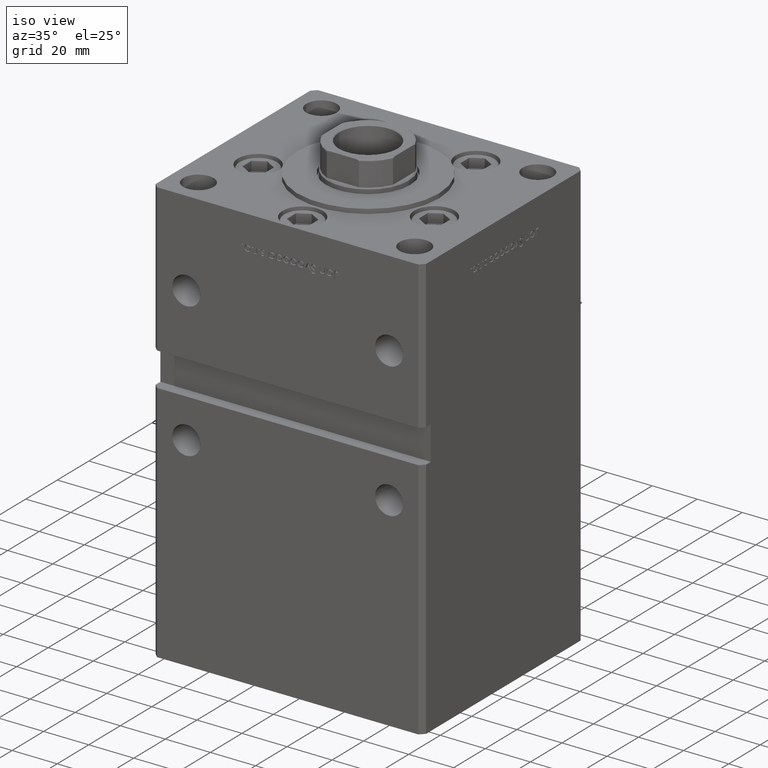
[diagram: clean part render]
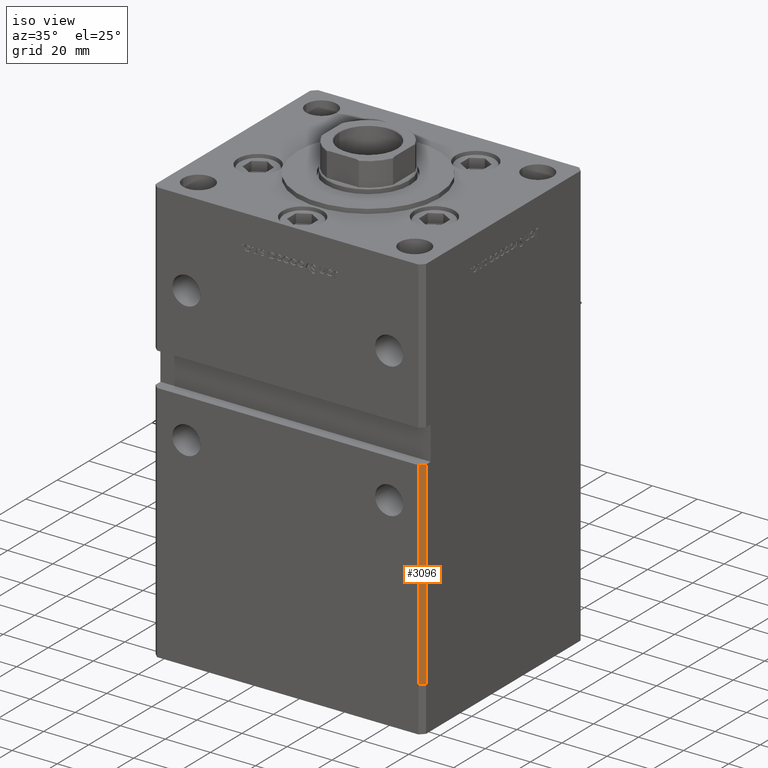
[diagram: same view with one face highlighted and labeled with its STEP entity id]
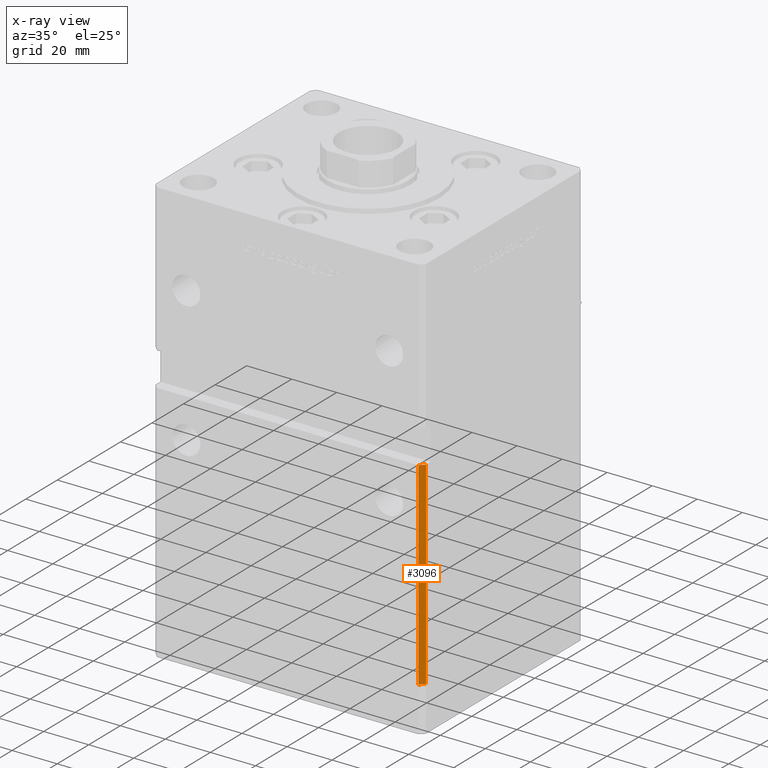
[diagram: x-ray of the same camera — body ghosted, the highlighted face saturated]
A machine part, iso view. The second image highlights one B-rep face of the part: STEP entity #3096.
The next image is the same camera in x-ray: the body ghosted, the highlighted face saturated — about 0% of this face is hidden behind the body in this view.
In plain terms, the highlighted planar face has unit normal (0.7071, -0.7071, 0).
Its self-contained STEP definition (entity closure, byte-faithful):
#22 = CARTESIAN_POINT ( 'NONE',  ( 59.99999999999998579, -48.99999999999998579, 0.000000000000000000 ) ) ;
#486 = VECTOR ( 'NONE', #27122, 1000.000000000000000 ) ;
#1214 = AXIS2_PLACEMENT_3D ( 'NONE', #38685, #34694, #26718 ) ;
#3096 = ADVANCED_FACE ( 'NONE', ( #51553 ), #13346, .T. ) ;
#6011 = LINE ( 'NONE', #10552, #27839 ) ;
#6063 = LINE ( 'NONE', #36249, #19064 ) ;
#9727 = LINE ( 'NONE', #48799, #486 ) ;
#10552 = CARTESIAN_POINT ( 'NONE',  ( 59.99999999999998579, -48.99999999999998579, 88.00000000000000000 ) ) ;
#11244 = VERTEX_POINT ( 'NONE', #29175 ) ;
#12495 = EDGE_CURVE ( 'NONE', #30217, #28356, #6011, .T. ) ;
#13346 = PLANE ( 'NONE',  #1214 ) ;
#14180 = ORIENTED_EDGE ( 'NONE', *, *, #12495, .F. ) ;
#14542 = CARTESIAN_POINT ( 'NONE',  ( 57.99999999999997868, -50.99999999999999289, 0.000000000000000000 ) ) ;
#15413 = EDGE_CURVE ( 'NONE', #11244, #33358, #26512, .T. ) ;
#16535 = CARTESIAN_POINT ( 'NONE',  ( 57.99999999999997868, -50.99999999999999289, 88.00000000000000000 ) ) ;
#19064 = VECTOR ( 'NONE', #44233, 1000.000000000000000 ) ;
#20189 = EDGE_CURVE ( 'NONE', #30217, #33358, #6063, .T. ) ;
#23036 = CARTESIAN_POINT ( 'NONE',  ( 59.99999999999998579, -48.99999999999998579, 88.00000000000000000 ) ) ;
#25041 = ORIENTED_EDGE ( 'NONE', *, *, #53018, .F. ) ;
#26119 = VECTOR ( 'NONE', #43896, 1000.000000000000114 ) ;
#26512 = LINE ( 'NONE', #22, #26119 ) ;
#26718 = DIRECTION ( 'NONE',  ( 0.7071067811865474617, 0.7071067811865474617, 0.000000000000000000 ) ) ;
#27122 = DIRECTION ( 'NONE',  ( -0.000000000000000000, -0.000000000000000000, -1.000000000000000000 ) ) ;
#27839 = VECTOR ( 'NONE', #53616, 1000.000000000000114 ) ;
#28356 = VERTEX_POINT ( 'NONE', #23036 ) ;
#28473 = ORIENTED_EDGE ( 'NONE', *, *, #15413, .F. ) ;
#29175 = CARTESIAN_POINT ( 'NONE',  ( 59.99999999999998579, -48.99999999999998579, 0.000000000000000000 ) ) ;
#30217 = VERTEX_POINT ( 'NONE', #16535 ) ;
#33358 = VERTEX_POINT ( 'NONE', #14542 ) ;
#34694 = DIRECTION ( 'NONE',  ( 0.7071067811865475727, -0.7071067811865475727, 0.000000000000000000 ) ) ;
#35284 = ORIENTED_EDGE ( 'NONE', *, *, #20189, .T. ) ;
#36249 = CARTESIAN_POINT ( 'NONE',  ( 57.99999999999997868, -50.99999999999999289, 148.5000000000000000 ) ) ;
#38685 = CARTESIAN_POINT ( 'NONE',  ( 59.99999999999998579, -48.99999999999998579, 148.5000000000000000 ) ) ;
#43896 = DIRECTION ( 'NONE',  ( -0.7071067811865474617, -0.7071067811865474617, 0.000000000000000000 ) ) ;
#44233 = DIRECTION ( 'NONE',  ( -0.000000000000000000, -0.000000000000000000, -1.000000000000000000 ) ) ;
#47768 = EDGE_LOOP ( 'NONE', ( #14180, #35284, #28473, #25041 ) ) ;
#48799 = CARTESIAN_POINT ( 'NONE',  ( 59.99999999999998579, -48.99999999999998579, 148.5000000000000000 ) ) ;
#51553 = FACE_OUTER_BOUND ( 'NONE', #47768, .T. ) ;
#53018 = EDGE_CURVE ( 'NONE', #28356, #11244, #9727, .T. ) ;
#53616 = DIRECTION ( 'NONE',  ( 0.7071067811865474617, 0.7071067811865474617, 0.000000000000000000 ) ) ;